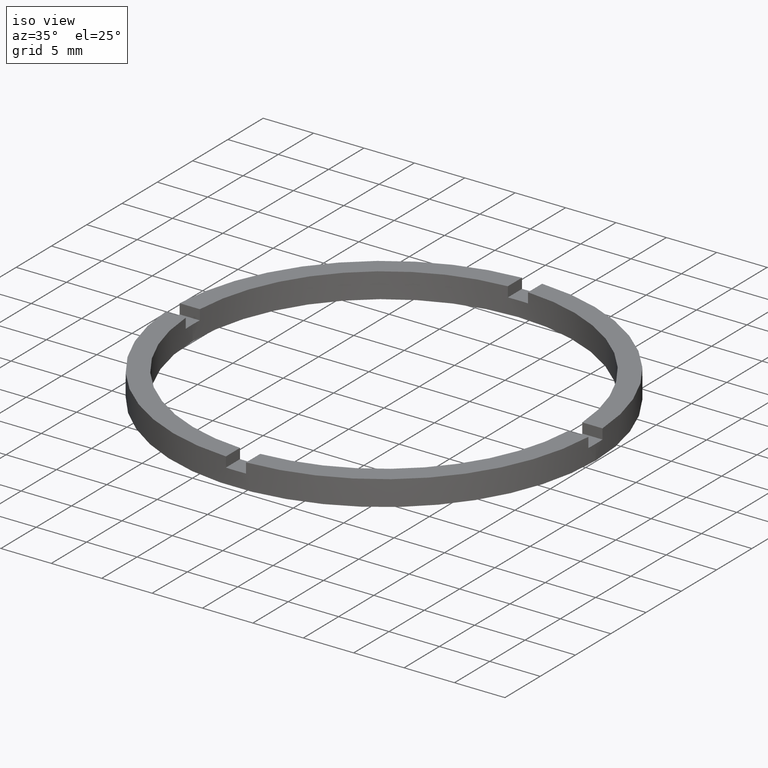
[diagram: clean part render]
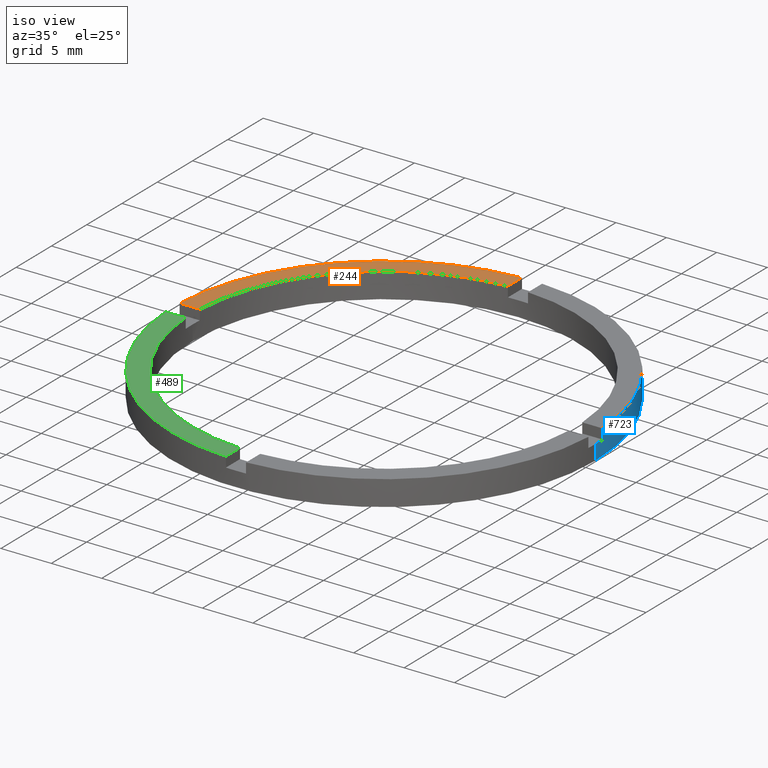
[diagram: same view with three faces highlighted in distinct colors, each labeled with its STEP entity id]
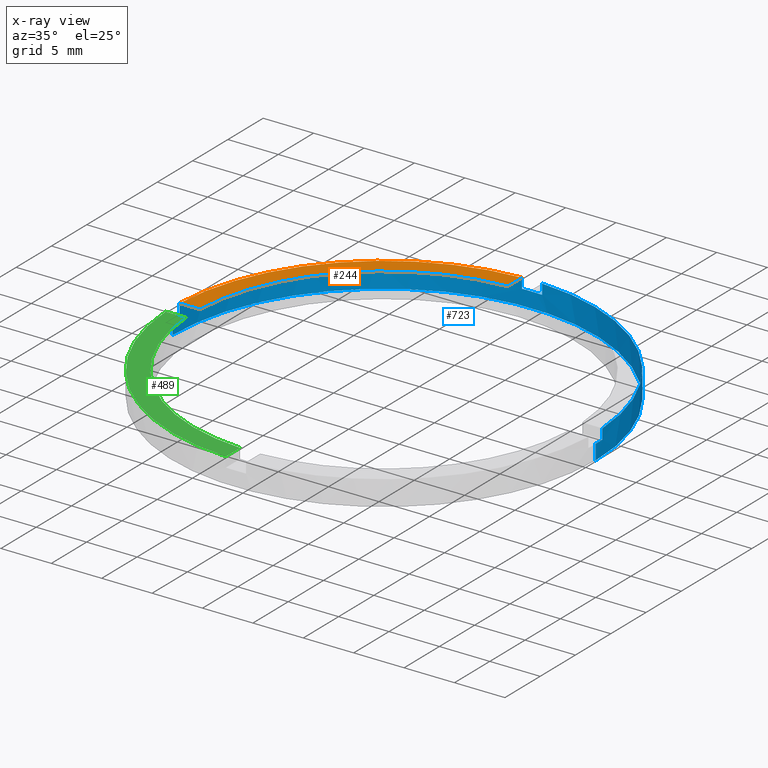
[diagram: x-ray of the same camera — body ghosted, the three highlighted faces saturated]
A machine part, iso view with three faces highlighted in distinct colors.
The next image is the same camera in x-ray (body ghosted, the three faces saturated) — at least one of them is partly hidden behind the body in this view.
Their STEP definitions:

[orange] entity #244 — the highlighted planar face has unit normal (0, 0, 1).
#4 = EDGE_CURVE ( 'NONE', #311, #121, #358, .T. ) ;
#6 = DIRECTION ( 'NONE',  ( 0.000000000000000000, 0.000000000000000000, 1.000000000000000000 ) ) ;
#22 = ORIENTED_EDGE ( 'NONE', *, *, #4, .F. ) ;
#42 = CARTESIAN_POINT ( 'NONE',  ( -18.97366596101027625, 0.9999999999999756861, 2.500000000000000000 ) ) ;
#114 = AXIS2_PLACEMENT_3D ( 'NONE', #350, #415, #486 ) ;
#121 = VERTEX_POINT ( 'NONE', #42 ) ;
#143 = VECTOR ( 'NONE', #270, 1000.000000000000000 ) ;
#158 = CARTESIAN_POINT ( 'NONE',  ( -20.97617696340303439, 0.9999999999999753530, 2.500000000000000000 ) ) ;
#167 = ORIENTED_EDGE ( 'NONE', *, *, #258, .T. ) ;
#197 = DIRECTION ( 'NONE',  ( 0.000000000000000000, 0.000000000000000000, 1.000000000000000000 ) ) ;
#244 = ADVANCED_FACE ( 'NONE', ( #377 ), #298, .T. ) ;
#258 = EDGE_CURVE ( 'NONE', #719, #304, #378, .T. ) ;
#270 = DIRECTION ( 'NONE',  ( -0.000000000000000000, -1.000000000000000000, -0.000000000000000000 ) ) ;
#295 = CARTESIAN_POINT ( 'NONE',  ( -1.000000000000025535, 11.00000000000000178, 2.500000000000000000 ) ) ;
#298 = PLANE ( 'NONE',  #114 ) ;
#304 = VERTEX_POINT ( 'NONE', #158 ) ;
#311 = VERTEX_POINT ( 'NONE', #596 ) ;
#347 = CARTESIAN_POINT ( 'NONE',  ( -1.000000000000025091, 20.97617696340302729, 2.500000000000000000 ) ) ;
#350 = CARTESIAN_POINT ( 'NONE',  ( 0.000000000000000000, 0.000000000000000000, 2.500000000000000000 ) ) ;
#358 = CIRCLE ( 'NONE', #712, 19.00000000000000000 ) ;
#377 = FACE_OUTER_BOUND ( 'NONE', #773, .T. ) ;
#378 = CIRCLE ( 'NONE', #497, 21.00000000000000000 ) ;
#413 = LINE ( 'NONE', #655, #425 ) ;
#415 = DIRECTION ( 'NONE',  ( 0.000000000000000000, 0.000000000000000000, 1.000000000000000000 ) ) ;
#425 = VECTOR ( 'NONE', #779, 1000.000000000000000 ) ;
#452 = EDGE_CURVE ( 'NONE', #719, #311, #692, .T. ) ;
#486 = DIRECTION ( 'NONE',  ( 1.000000000000000000, 0.000000000000000000, -0.000000000000000000 ) ) ;
#497 = AXIS2_PLACEMENT_3D ( 'NONE', #547, #197, #619 ) ;
#547 = CARTESIAN_POINT ( 'NONE',  ( 0.000000000000000000, 0.000000000000000000, 2.500000000000000000 ) ) ;
#573 = CARTESIAN_POINT ( 'NONE',  ( 0.000000000000000000, 0.000000000000000000, 2.500000000000000000 ) ) ;
#596 = CARTESIAN_POINT ( 'NONE',  ( -1.000000000000025091, 18.97366596101027270, 2.500000000000000000 ) ) ;
#619 = DIRECTION ( 'NONE',  ( 1.000000000000000000, 0.000000000000000000, 0.000000000000000000 ) ) ;
#625 = DIRECTION ( 'NONE',  ( 1.000000000000000000, 0.000000000000000000, 0.000000000000000000 ) ) ;
#631 = EDGE_CURVE ( 'NONE', #121, #304, #413, .T. ) ;
#655 = CARTESIAN_POINT ( 'NONE',  ( -11.00000000000018652, 0.9999999999999770184, 2.500000000000000000 ) ) ;
#692 = LINE ( 'NONE', #295, #143 ) ;
#712 = AXIS2_PLACEMENT_3D ( 'NONE', #573, #6, #625 ) ;
#719 = VERTEX_POINT ( 'NONE', #347 ) ;
#720 = ORIENTED_EDGE ( 'NONE', *, *, #452, .F. ) ;
#735 = ORIENTED_EDGE ( 'NONE', *, *, #631, .F. ) ;
#773 = EDGE_LOOP ( 'NONE', ( #720, #167, #735, #22 ) ) ;
#779 = DIRECTION ( 'NONE',  ( -1.000000000000000000, -1.734723475976806848E-16, 0.000000000000000000 ) ) ;

[blue] entity #723 — the highlighted cylindrical surface (partial cylindrical patch) has radius 21 mm, axis along (-0, -0, -1).
#9 = DIRECTION ( 'NONE',  ( 0.000000000000000000, 0.000000000000000000, 1.000000000000000000 ) ) ;
#13 = ORIENTED_EDGE ( 'NONE', *, *, #660, .T. ) ;
#15 = VERTEX_POINT ( 'NONE', #753 ) ;
#19 = VERTEX_POINT ( 'NONE', #142 ) ;
#26 = ORIENTED_EDGE ( 'NONE', *, *, #439, .T. ) ;
#27 = ORIENTED_EDGE ( 'NONE', *, *, #251, .T. ) ;
#36 = VERTEX_POINT ( 'NONE', #697 ) ;
#61 = VERTEX_POINT ( 'NONE', #219 ) ;
#67 = DIRECTION ( 'NONE',  ( -0.000000000000000000, -0.000000000000000000, -1.000000000000000000 ) ) ;
#85 = DIRECTION ( 'NONE',  ( 0.000000000000000000, 0.000000000000000000, 1.000000000000000000 ) ) ;
#89 = EDGE_CURVE ( 'NONE', #206, #61, #653, .T. ) ;
#98 = VECTOR ( 'NONE', #445, 1000.000000000000000 ) ;
#101 = CARTESIAN_POINT ( 'NONE',  ( -20.97617696340303439, 0.9999999999999753530, 1.500000000000000000 ) ) ;
#106 = CARTESIAN_POINT ( 'NONE',  ( 0.9999999999999740208, 20.97617696340303084, 1.500000000000000000 ) ) ;
#109 = CARTESIAN_POINT ( 'NONE',  ( -21.00000000000000000, 0.000000000000000000, 1.500000000000000000 ) ) ;
#113 = VECTOR ( 'NONE', #736, 1000.000000000000000 ) ;
#124 = CARTESIAN_POINT ( 'NONE',  ( 20.97617696340304150, 0.9999999999998416822, 2.500000000000000000 ) ) ;
#126 = AXIS2_PLACEMENT_3D ( 'NONE', #221, #338, #654 ) ;
#127 = CIRCLE ( 'NONE', #396, 21.00000000000000000 ) ;
#136 = EDGE_CURVE ( 'NONE', #19, #543, #628, .T. ) ;
#139 = EDGE_CURVE ( 'NONE', #19, #15, #374, .T. ) ;
#142 = CARTESIAN_POINT ( 'NONE',  ( 21.00000000000000000, 2.571758278209441661E-15, 1.500000000000000000 ) ) ;
#144 = LINE ( 'NONE', #248, #689 ) ;
#145 = CARTESIAN_POINT ( 'NONE',  ( 0.000000000000000000, 0.000000000000000000, 1.500000000000000000 ) ) ;
#148 = CIRCLE ( 'NONE', #433, 21.00000000000000000 ) ;
#158 = CARTESIAN_POINT ( 'NONE',  ( -20.97617696340303439, 0.9999999999999753530, 2.500000000000000000 ) ) ;
#177 = VERTEX_POINT ( 'NONE', #101 ) ;
#192 = VECTOR ( 'NONE', #427, 1000.000000000000000 ) ;
#194 = DIRECTION ( 'NONE',  ( 1.000000000000000000, 0.000000000000000000, 0.000000000000000000 ) ) ;
#197 = DIRECTION ( 'NONE',  ( 0.000000000000000000, 0.000000000000000000, 1.000000000000000000 ) ) ;
#206 = VERTEX_POINT ( 'NONE', #731 ) ;
#208 = ORIENTED_EDGE ( 'NONE', *, *, #225, .F. ) ;
#219 = CARTESIAN_POINT ( 'NONE',  ( 0.9999999999999740208, 20.97617696340303084, 2.500000000000000000 ) ) ;
#221 = CARTESIAN_POINT ( 'NONE',  ( 0.000000000000000000, 0.000000000000000000, 2.500000000000000000 ) ) ;
#225 = EDGE_CURVE ( 'NONE', #546, #36, #637, .T. ) ;
#230 = CARTESIAN_POINT ( 'NONE',  ( -21.00000000000000000, 0.000000000000000000, 0.000000000000000000 ) ) ;
#239 = DIRECTION ( 'NONE',  ( 1.000000000000000000, 0.000000000000000000, 0.000000000000000000 ) ) ;
#248 = CARTESIAN_POINT ( 'NONE',  ( -21.00000000000000000, 0.000000000000000000, 2.500000000000000000 ) ) ;
#251 = EDGE_CURVE ( 'NONE', #719, #36, #646, .T. ) ;
#254 = DIRECTION ( 'NONE',  ( -0.000000000000000000, -0.000000000000000000, -1.000000000000000000 ) ) ;
#255 = CARTESIAN_POINT ( 'NONE',  ( 21.00000000000000000, 2.571758278209441661E-15, 2.500000000000000000 ) ) ;
#258 = EDGE_CURVE ( 'NONE', #719, #304, #378, .T. ) ;
#271 = CARTESIAN_POINT ( 'NONE',  ( 0.000000000000000000, 0.000000000000000000, 2.500000000000000000 ) ) ;
#279 = EDGE_CURVE ( 'NONE', #206, #543, #661, .T. ) ;
#293 = ORIENTED_EDGE ( 'NONE', *, *, #139, .T. ) ;
#304 = VERTEX_POINT ( 'NONE', #158 ) ;
#310 = ORIENTED_EDGE ( 'NONE', *, *, #688, .T. ) ;
#319 = VERTEX_POINT ( 'NONE', #230 ) ;
#328 = CARTESIAN_POINT ( 'NONE',  ( 0.000000000000000000, 0.000000000000000000, 1.500000000000000000 ) ) ;
#334 = EDGE_CURVE ( 'NONE', #177, #458, #127, .T. ) ;
#338 = DIRECTION ( 'NONE',  ( 0.000000000000000000, 0.000000000000000000, 1.000000000000000000 ) ) ;
#347 = CARTESIAN_POINT ( 'NONE',  ( -1.000000000000025091, 20.97617696340302729, 2.500000000000000000 ) ) ;
#357 = CARTESIAN_POINT ( 'NONE',  ( -20.97617696340303439, 0.9999999999999753530, 2.500000000000000000 ) ) ;
#366 = CARTESIAN_POINT ( 'NONE',  ( -1.000000000000025535, 20.97617696340303084, 2.500000000000000000 ) ) ;
#374 = LINE ( 'NONE', #255, #98 ) ;
#375 = DIRECTION ( 'NONE',  ( 0.000000000000000000, 0.000000000000000000, 1.000000000000000000 ) ) ;
#378 = CIRCLE ( 'NONE', #497, 21.00000000000000000 ) ;
#395 = CARTESIAN_POINT ( 'NONE',  ( 0.9999999999999744649, 20.97617696340303439, 2.500000000000000000 ) ) ;
#396 = AXIS2_PLACEMENT_3D ( 'NONE', #145, #9, #621 ) ;
#403 = DIRECTION ( 'NONE',  ( -1.000000000000000000, 0.000000000000000000, 0.000000000000000000 ) ) ;
#421 = LINE ( 'NONE', #395, #431 ) ;
#427 = DIRECTION ( 'NONE',  ( 0.000000000000000000, 0.000000000000000000, 1.000000000000000000 ) ) ;
#428 = CARTESIAN_POINT ( 'NONE',  ( 0.000000000000000000, 0.000000000000000000, 1.500000000000000000 ) ) ;
#431 = VECTOR ( 'NONE', #85, 1000.000000000000000 ) ;
#433 = AXIS2_PLACEMENT_3D ( 'NONE', #522, #770, #239 ) ;
#438 = CYLINDRICAL_SURFACE ( 'NONE', #531, 21.00000000000000000 ) ;
#439 = EDGE_CURVE ( 'NONE', #177, #304, #707, .T. ) ;
#445 = DIRECTION ( 'NONE',  ( -0.000000000000000000, -0.000000000000000000, -1.000000000000000000 ) ) ;
#458 = VERTEX_POINT ( 'NONE', #109 ) ;
#469 = ORIENTED_EDGE ( 'NONE', *, *, #334, .F. ) ;
#497 = AXIS2_PLACEMENT_3D ( 'NONE', #547, #197, #619 ) ;
#501 = ORIENTED_EDGE ( 'NONE', *, *, #89, .F. ) ;
#522 = CARTESIAN_POINT ( 'NONE',  ( 0.000000000000000000, 0.000000000000000000, 0.000000000000000000 ) ) ;
#531 = AXIS2_PLACEMENT_3D ( 'NONE', #271, #605, #403 ) ;
#532 = CARTESIAN_POINT ( 'NONE',  ( 20.97617696340304150, 0.9999999999998416822, 1.500000000000000000 ) ) ;
#538 = DIRECTION ( 'NONE',  ( 0.000000000000000000, -0.000000000000000000, 1.000000000000000000 ) ) ;
#543 = VERTEX_POINT ( 'NONE', #532 ) ;
#546 = VERTEX_POINT ( 'NONE', #106 ) ;
#547 = CARTESIAN_POINT ( 'NONE',  ( 0.000000000000000000, 0.000000000000000000, 2.500000000000000000 ) ) ;
#556 = AXIS2_PLACEMENT_3D ( 'NONE', #328, #375, #749 ) ;
#570 = EDGE_LOOP ( 'NONE', ( #752, #293, #13, #583, #469, #26, #759, #27, #208, #310, #501, #721 ) ) ;
#583 = ORIENTED_EDGE ( 'NONE', *, *, #606, .F. ) ;
#605 = DIRECTION ( 'NONE',  ( -0.000000000000000000, -0.000000000000000000, -1.000000000000000000 ) ) ;
#606 = EDGE_CURVE ( 'NONE', #458, #319, #144, .T. ) ;
#619 = DIRECTION ( 'NONE',  ( 1.000000000000000000, 0.000000000000000000, 0.000000000000000000 ) ) ;
#621 = DIRECTION ( 'NONE',  ( 1.000000000000000000, 0.000000000000000000, 0.000000000000000000 ) ) ;
#628 = CIRCLE ( 'NONE', #556, 21.00000000000000000 ) ;
#637 = CIRCLE ( 'NONE', #729, 21.00000000000000000 ) ;
#646 = LINE ( 'NONE', #366, #113 ) ;
#653 = CIRCLE ( 'NONE', #126, 21.00000000000000000 ) ;
#654 = DIRECTION ( 'NONE',  ( 1.000000000000000000, 0.000000000000000000, 0.000000000000000000 ) ) ;
#660 = EDGE_CURVE ( 'NONE', #15, #319, #148, .T. ) ;
#661 = LINE ( 'NONE', #124, #667 ) ;
#667 = VECTOR ( 'NONE', #254, 1000.000000000000000 ) ;
#688 = EDGE_CURVE ( 'NONE', #546, #61, #421, .T. ) ;
#689 = VECTOR ( 'NONE', #67, 1000.000000000000000 ) ;
#691 = FACE_OUTER_BOUND ( 'NONE', #570, .T. ) ;
#697 = CARTESIAN_POINT ( 'NONE',  ( -1.000000000000025091, 20.97617696340302729, 1.500000000000000000 ) ) ;
#707 = LINE ( 'NONE', #357, #192 ) ;
#719 = VERTEX_POINT ( 'NONE', #347 ) ;
#721 = ORIENTED_EDGE ( 'NONE', *, *, #279, .T. ) ;
#723 = ADVANCED_FACE ( 'NONE', ( #691 ), #438, .T. ) ;
#729 = AXIS2_PLACEMENT_3D ( 'NONE', #428, #538, #194 ) ;
#731 = CARTESIAN_POINT ( 'NONE',  ( 20.97617696340304150, 0.9999999999998416822, 2.500000000000000000 ) ) ;
#736 = DIRECTION ( 'NONE',  ( -0.000000000000000000, -0.000000000000000000, -1.000000000000000000 ) ) ;
#749 = DIRECTION ( 'NONE',  ( 1.000000000000000000, 0.000000000000000000, 0.000000000000000000 ) ) ;
#752 = ORIENTED_EDGE ( 'NONE', *, *, #136, .F. ) ;
#753 = CARTESIAN_POINT ( 'NONE',  ( 21.00000000000000000, 2.571758278209441661E-15, 0.000000000000000000 ) ) ;
#759 = ORIENTED_EDGE ( 'NONE', *, *, #258, .F. ) ;
#770 = DIRECTION ( 'NONE',  ( 0.000000000000000000, 0.000000000000000000, 1.000000000000000000 ) ) ;

[green] entity #489 — the highlighted planar face has unit normal (0, 0, 1).
#5 = CARTESIAN_POINT ( 'NONE',  ( -1.000000000000162759, -11.00000000000018119, 2.500000000000000000 ) ) ;
#8 = CARTESIAN_POINT ( 'NONE',  ( 0.000000000000000000, 0.000000000000000000, 2.500000000000000000 ) ) ;
#14 = CARTESIAN_POINT ( 'NONE',  ( -11.00000000000018652, -1.000000000000023093, 2.500000000000000000 ) ) ;
#17 = EDGE_CURVE ( 'NONE', #326, #493, #382, .T. ) ;
#50 = CARTESIAN_POINT ( 'NONE',  ( -1.000000000000161204, -20.97617696340302018, 2.500000000000000000 ) ) ;
#79 = DIRECTION ( 'NONE',  ( 1.000000000000000000, 1.734723475976806848E-16, -0.000000000000000000 ) ) ;
#125 = LINE ( 'NONE', #5, #669 ) ;
#174 = CIRCLE ( 'NONE', #579, 21.00000000000000000 ) ;
#189 = DIRECTION ( 'NONE',  ( 1.000000000000000000, 0.000000000000000000, 0.000000000000000000 ) ) ;
#199 = EDGE_CURVE ( 'NONE', #493, #577, #368, .T. ) ;
#210 = ORIENTED_EDGE ( 'NONE', *, *, #17, .F. ) ;
#292 = EDGE_CURVE ( 'NONE', #577, #294, #125, .T. ) ;
#294 = VERTEX_POINT ( 'NONE', #50 ) ;
#303 = AXIS2_PLACEMENT_3D ( 'NONE', #782, #657, #189 ) ;
#326 = VERTEX_POINT ( 'NONE', #400 ) ;
#368 = CIRCLE ( 'NONE', #303, 19.00000000000000000 ) ;
#382 = LINE ( 'NONE', #14, #384 ) ;
#384 = VECTOR ( 'NONE', #79, 1000.000000000000000 ) ;
#400 = CARTESIAN_POINT ( 'NONE',  ( -20.97617696340303084, -1.000000000000024647, 2.500000000000000000 ) ) ;
#407 = AXIS2_PLACEMENT_3D ( 'NONE', #460, #412, #521 ) ;
#412 = DIRECTION ( 'NONE',  ( 0.000000000000000000, 0.000000000000000000, 1.000000000000000000 ) ) ;
#418 = DIRECTION ( 'NONE',  ( 0.000000000000000000, 0.000000000000000000, 1.000000000000000000 ) ) ;
#460 = CARTESIAN_POINT ( 'NONE',  ( 0.000000000000000000, 0.000000000000000000, 2.500000000000000000 ) ) ;
#489 = ADVANCED_FACE ( 'NONE', ( #678 ), #603, .T. ) ;
#493 = VERTEX_POINT ( 'NONE', #647 ) ;
#511 = EDGE_LOOP ( 'NONE', ( #698, #704, #210, #578 ) ) ;
#521 = DIRECTION ( 'NONE',  ( 1.000000000000000000, 0.000000000000000000, -0.000000000000000000 ) ) ;
#577 = VERTEX_POINT ( 'NONE', #739 ) ;
#578 = ORIENTED_EDGE ( 'NONE', *, *, #598, .T. ) ;
#579 = AXIS2_PLACEMENT_3D ( 'NONE', #8, #418, #727 ) ;
#598 = EDGE_CURVE ( 'NONE', #326, #294, #174, .T. ) ;
#603 = PLANE ( 'NONE',  #407 ) ;
#647 = CARTESIAN_POINT ( 'NONE',  ( -18.97366596101027625, -1.000000000000024203, 2.500000000000000000 ) ) ;
#657 = DIRECTION ( 'NONE',  ( 0.000000000000000000, 0.000000000000000000, 1.000000000000000000 ) ) ;
#669 = VECTOR ( 'NONE', #772, 1000.000000000000000 ) ;
#678 = FACE_OUTER_BOUND ( 'NONE', #511, .T. ) ;
#698 = ORIENTED_EDGE ( 'NONE', *, *, #292, .F. ) ;
#704 = ORIENTED_EDGE ( 'NONE', *, *, #199, .F. ) ;
#727 = DIRECTION ( 'NONE',  ( 1.000000000000000000, 0.000000000000000000, 0.000000000000000000 ) ) ;
#739 = CARTESIAN_POINT ( 'NONE',  ( -1.000000000000161648, -18.97366596101026204, 2.500000000000000000 ) ) ;
#772 = DIRECTION ( 'NONE',  ( 1.301042606982605074E-16, -1.000000000000000000, 0.000000000000000000 ) ) ;
#782 = CARTESIAN_POINT ( 'NONE',  ( 0.000000000000000000, 0.000000000000000000, 2.500000000000000000 ) ) ;